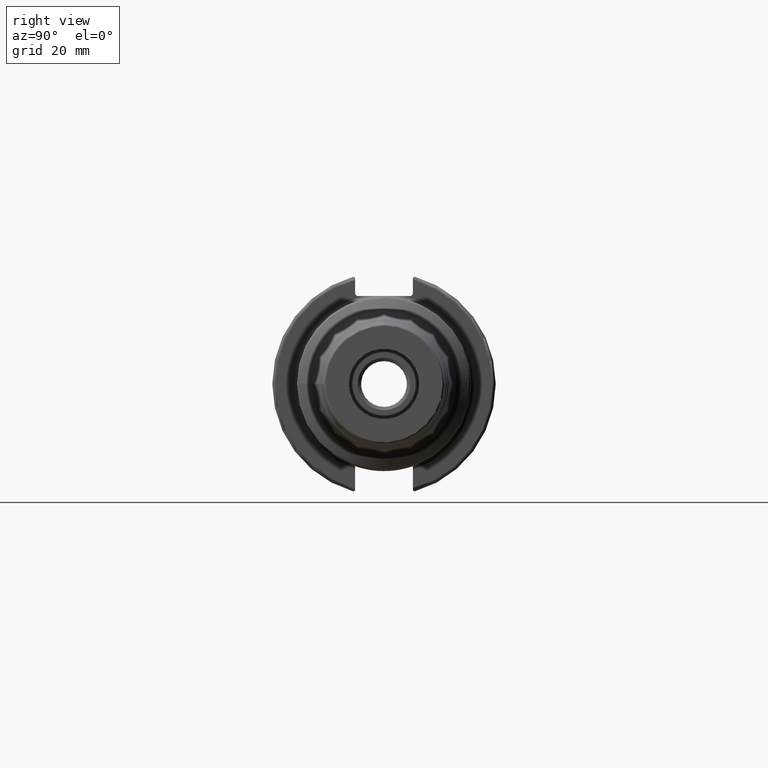
[diagram: clean part render]
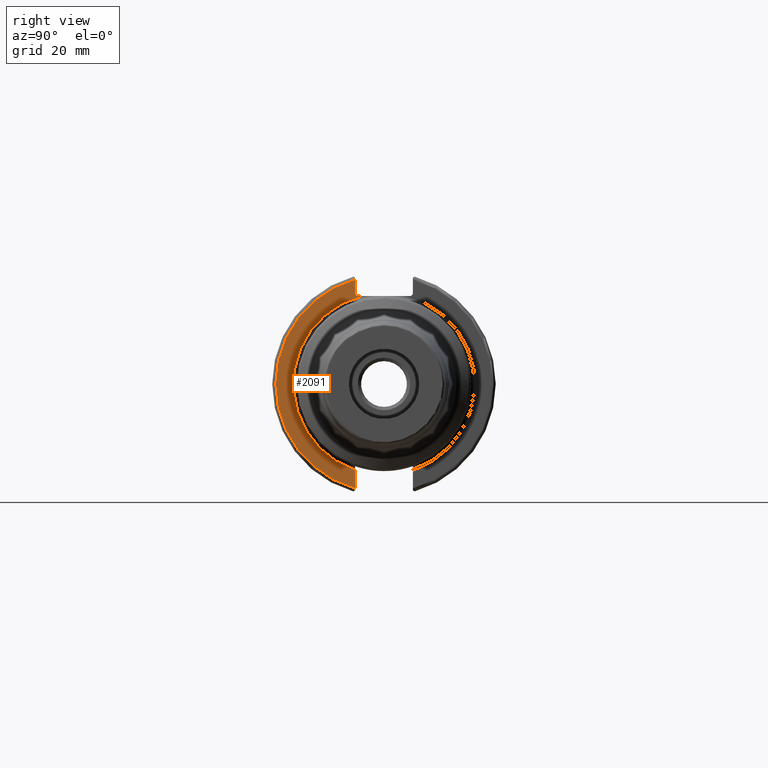
[diagram: same view with one face highlighted and labeled with its STEP entity id]
A machine part, right view. The second image highlights one B-rep face of the part: STEP entity #2091.
In plain terms, the highlighted planar face has unit normal (1, 0, 0).
Its self-contained STEP definition (entity closure, byte-faithful):
#50=PLANE('',#2307);
#202=FACE_OUTER_BOUND('',#311,.T.);
#311=EDGE_LOOP('',(#1563,#1564,#1565,#1566,#1567,#1568));
#417=LINE('',#3525,#516);
#418=LINE('',#3527,#517);
#419=LINE('',#3529,#518);
#420=LINE('',#3532,#519);
#516=VECTOR('',#2742,10.);
#517=VECTOR('',#2743,10.);
#518=VECTOR('',#2744,10.);
#519=VECTOR('',#2747,10.);
#687=CIRCLE('',#2305,25.75);
#689=CIRCLE('',#2308,30.75);
#855=VERTEX_POINT('',#3487);
#857=VERTEX_POINT('',#3499);
#859=VERTEX_POINT('',#3524);
#860=VERTEX_POINT('',#3526);
#861=VERTEX_POINT('',#3528);
#862=VERTEX_POINT('',#3530);
#1123=EDGE_CURVE('',#855,#857,#687,.T.);
#1127=EDGE_CURVE('',#855,#859,#417,.T.);
#1128=EDGE_CURVE('',#860,#859,#418,.T.);
#1129=EDGE_CURVE('',#860,#861,#419,.T.);
#1130=EDGE_CURVE('',#862,#861,#689,.T.);
#1131=EDGE_CURVE('',#862,#857,#420,.T.);
#1563=ORIENTED_EDGE('',*,*,#1123,.F.);
#1564=ORIENTED_EDGE('',*,*,#1127,.T.);
#1565=ORIENTED_EDGE('',*,*,#1128,.F.);
#1566=ORIENTED_EDGE('',*,*,#1129,.T.);
#1567=ORIENTED_EDGE('',*,*,#1130,.F.);
#1568=ORIENTED_EDGE('',*,*,#1131,.T.);
#2091=ADVANCED_FACE('',(#202),#50,.T.);
#2305=AXIS2_PLACEMENT_3D('',#3500,#2736,#2737);
#2307=AXIS2_PLACEMENT_3D('',#3523,#2740,#2741);
#2308=AXIS2_PLACEMENT_3D('',#3531,#2745,#2746);
#2736=DIRECTION('center_axis',(1.,0.,0.));
#2737=DIRECTION('ref_axis',(0.,6.12323399573677E-17,1.));
#2740=DIRECTION('center_axis',(1.,0.,0.));
#2741=DIRECTION('ref_axis',(0.,0.,-1.));
#2742=DIRECTION('',(0.,-1.,0.));
#2743=DIRECTION('',(0.,0.70710678118655,-0.707106781186545));
#2744=DIRECTION('',(0.,0.,1.));
#2745=DIRECTION('center_axis',(-1.,0.,0.));
#2746=DIRECTION('ref_axis',(0.,-1.,1.60812264967664E-16));
#2747=DIRECTION('',(0.,0.,1.));
#3487=CARTESIAN_POINT('',(19.05,-6.16948133962654,25.));
#3499=CARTESIAN_POINT('',(19.05,-8.19,-24.4128326910254));
#3500=CARTESIAN_POINT('Origin',(19.05,0.,0.));
#3523=CARTESIAN_POINT('Origin',(19.05,0.,0.));
#3524=CARTESIAN_POINT('',(19.05,-7.69,25.));
#3525=CARTESIAN_POINT('',(19.05,0.,25.));
#3526=CARTESIAN_POINT('',(19.05,-8.19,25.5));
#3527=CARTESIAN_POINT('',(19.05,0.357500000000014,16.9525));
#3528=CARTESIAN_POINT('',(19.05,-8.19,29.6392712461019));
#3529=CARTESIAN_POINT('',(19.05,-8.19,12.5));
#3530=CARTESIAN_POINT('',(19.05,-8.19,-29.6392712461019));
#3531=CARTESIAN_POINT('Origin',(19.05,0.,0.));
#3532=CARTESIAN_POINT('',(19.05,-8.19,-11.3));